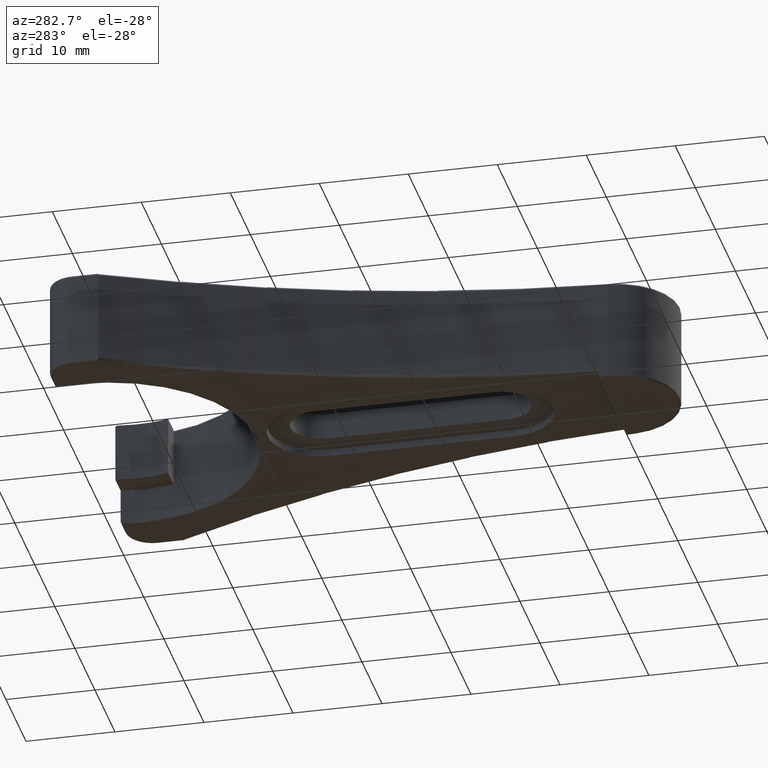
[diagram: clean part render]
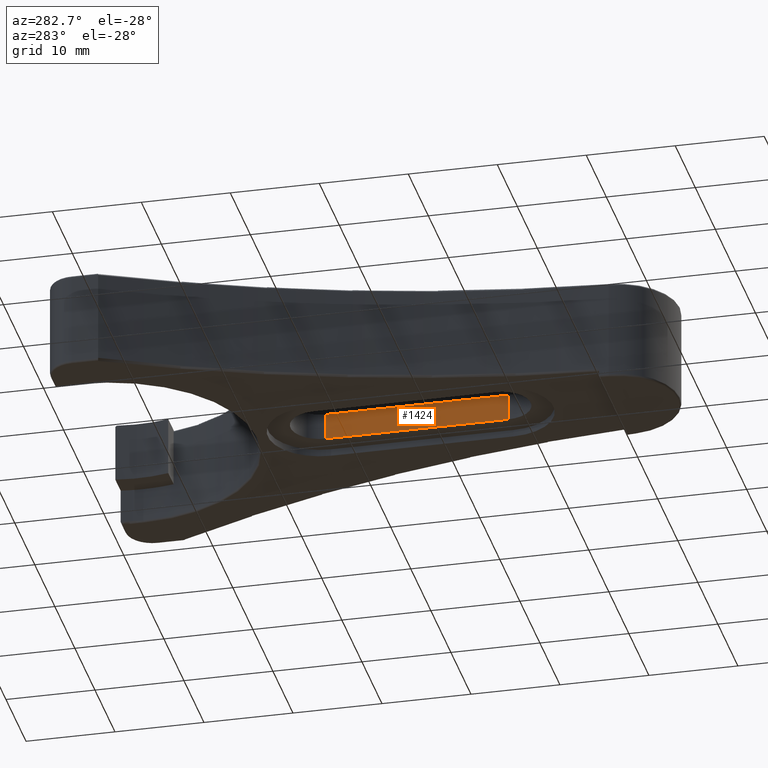
[diagram: same view with one face highlighted and labeled with its STEP entity id]
A machine part, auxiliary view. The second image highlights one B-rep face of the part: STEP entity #1424.
In plain terms, the highlighted planar face has unit normal (1, 0, 0).
Its self-contained STEP definition (entity closure, byte-faithful):
#195 = LINE ( 'NONE', #758, #1353 ) ;
#378 = VERTEX_POINT ( 'NONE', #610 ) ;
#408 = CARTESIAN_POINT ( 'NONE',  ( 3.250000000000001800, 33.49999999999933200, -0.7142161100930971600 ) ) ;
#421 = DIRECTION ( 'NONE',  ( -0.0000000000000000000, -0.0000000000000000000, 1.000000000000000000 ) ) ;
#444 = ORIENTED_EDGE ( 'NONE', *, *, #1730, .F. ) ;
#512 = ORIENTED_EDGE ( 'NONE', *, *, #1803, .T. ) ;
#610 = CARTESIAN_POINT ( 'NONE',  ( 3.249999999999999600, 13.00000000000078900, 3.800000000000000300 ) ) ;
#701 = DIRECTION ( 'NONE',  ( 1.000000000000000000, 6.346549302354624700E-017, 0.0000000000000000000 ) ) ;
#703 = FACE_OUTER_BOUND ( 'NONE', #1709, .T. ) ;
#725 = CARTESIAN_POINT ( 'NONE',  ( 3.250000000000001800, 33.49999999999933200, 3.800000000000000300 ) ) ;
#758 = CARTESIAN_POINT ( 'NONE',  ( 3.250000000000057300, 33.49999999999984400, 0.8000000000000000400 ) ) ;
#957 = PLANE ( 'NONE',  #1618 ) ;
#1011 = CARTESIAN_POINT ( 'NONE',  ( 3.250000000000001800, 33.49999999999933200, -0.7142161100930971600 ) ) ;
#1038 = CARTESIAN_POINT ( 'NONE',  ( 3.249999999999999600, 13.00000000000078900, -0.7142161100930971600 ) ) ;
#1078 = ORIENTED_EDGE ( 'NONE', *, *, #1776, .F. ) ;
#1126 = ORIENTED_EDGE ( 'NONE', *, *, #1586, .T. ) ;
#1160 = VECTOR ( 'NONE', #421, 1000.000000000000000 ) ;
#1179 = DIRECTION ( 'NONE',  ( -0.0000000000000000000, -0.0000000000000000000, 1.000000000000000000 ) ) ;
#1208 = VECTOR ( 'NONE', #1179, 1000.000000000000000 ) ;
#1288 = VERTEX_POINT ( 'NONE', #1294 ) ;
#1294 = CARTESIAN_POINT ( 'NONE',  ( 3.249999999999999600, 13.00000000000078900, 0.7999999999999999300 ) ) ;
#1299 = VERTEX_POINT ( 'NONE', #1561 ) ;
#1338 = DIRECTION ( 'NONE',  ( 2.771326528694783300E-015, 1.000000000000000000, -0.0000000000000000000 ) ) ;
#1343 = CARTESIAN_POINT ( 'NONE',  ( 3.250000000000001800, 33.49999999999933200, 3.800000000000000300 ) ) ;
#1353 = VECTOR ( 'NONE', #1338, 1000.000000000000000 ) ;
#1424 = ADVANCED_FACE ( 'NONE', ( #703 ), #957, .F. ) ;
#1435 = LINE ( 'NONE', #1038, #1208 ) ;
#1456 = DIRECTION ( 'NONE',  ( -6.346549302354624700E-017, 1.000000000000000000, 0.0000000000000000000 ) ) ;
#1561 = CARTESIAN_POINT ( 'NONE',  ( 3.250000000000001800, 33.49999999999933200, 0.7999999999999999300 ) ) ;
#1586 = EDGE_CURVE ( 'NONE', #378, #1818, #1909, .T. ) ;
#1618 = AXIS2_PLACEMENT_3D ( 'NONE', #1011, #701, #1456 ) ;
#1709 = EDGE_LOOP ( 'NONE', ( #512, #1126, #444, #1078 ) ) ;
#1726 = LINE ( 'NONE', #408, #1160 ) ;
#1730 = EDGE_CURVE ( 'NONE', #1299, #1818, #1726, .T. ) ;
#1776 = EDGE_CURVE ( 'NONE', #1288, #1299, #195, .T. ) ;
#1782 = VECTOR ( 'NONE', #1958, 1000.000000000000000 ) ;
#1803 = EDGE_CURVE ( 'NONE', #1288, #378, #1435, .T. ) ;
#1818 = VERTEX_POINT ( 'NONE', #1343 ) ;
#1909 = LINE ( 'NONE', #725, #1782 ) ;
#1958 = DIRECTION ( 'NONE',  ( -6.346549302354624700E-017, 1.000000000000000000, -0.0000000000000000000 ) ) ;